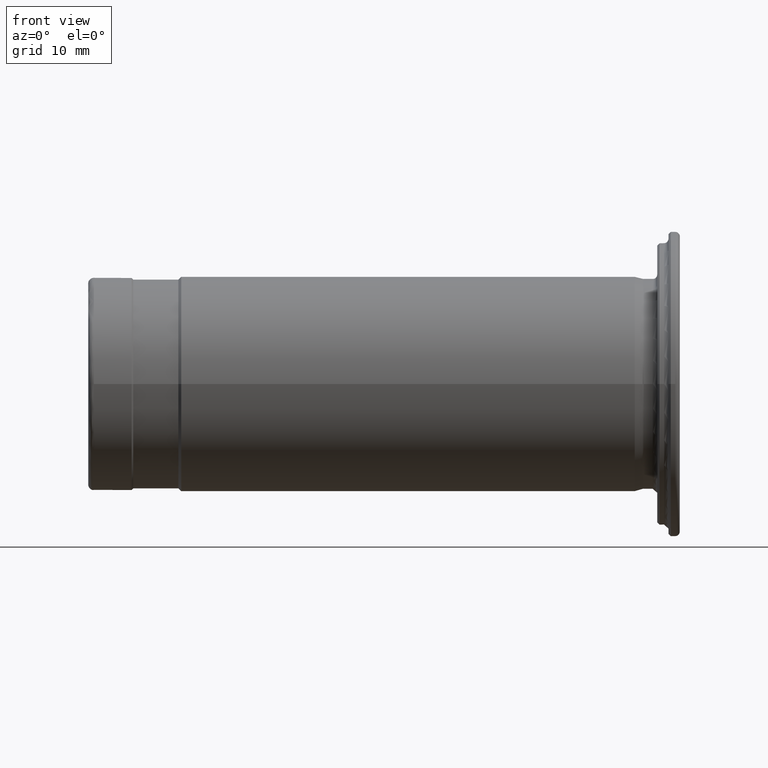
[diagram: clean part render]
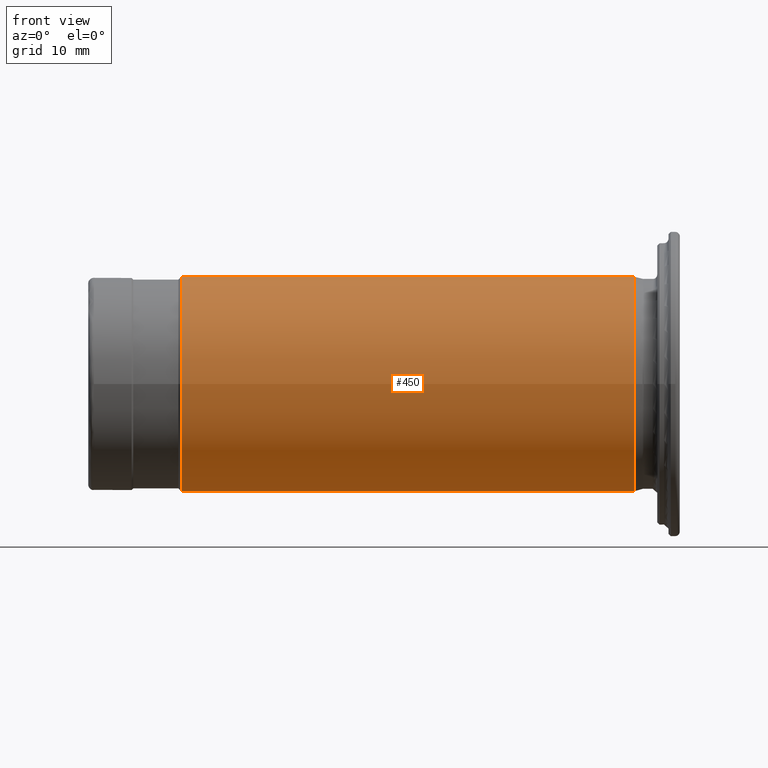
[diagram: same view with one face highlighted and labeled with its STEP entity id]
A machine part, front view. The second image highlights one B-rep face of the part: STEP entity #450.
In plain terms, the highlighted cylindrical surface (bore or boss wall) has radius 9.525 mm, axis along (1, 0, 0).
Its self-contained STEP definition (entity closure, byte-faithful):
#31=CYLINDRICAL_SURFACE('',#549,9.52500000000011);
#68=FACE_OUTER_BOUND('',#101,.T.);
#101=EDGE_LOOP('',(#410,#411,#412,#413));
#118=LINE('',#853,#135);
#135=VECTOR('',#720,9.52500000000011);
#137=CIRCLE('',#476,9.52500000000011);
#182=CIRCLE('',#548,9.52500000000011);
#185=VERTEX_POINT('',#726);
#221=VERTEX_POINT('',#849);
#224=EDGE_CURVE('',#185,#185,#137,.T.);
#283=EDGE_CURVE('',#221,#221,#182,.T.);
#285=EDGE_CURVE('',#185,#221,#118,.T.);
#410=ORIENTED_EDGE('',*,*,#224,.F.);
#411=ORIENTED_EDGE('',*,*,#285,.T.);
#412=ORIENTED_EDGE('',*,*,#283,.T.);
#413=ORIENTED_EDGE('',*,*,#285,.F.);
#450=ADVANCED_FACE('',(#68),#31,.T.);
#476=AXIS2_PLACEMENT_3D('',#728,#557,#558);
#548=AXIS2_PLACEMENT_3D('',#850,#715,#716);
#549=AXIS2_PLACEMENT_3D('',#852,#718,#719);
#557=DIRECTION('center_axis',(1.,0.,0.));
#558=DIRECTION('ref_axis',(0.,0.,-1.));
#715=DIRECTION('center_axis',(1.,0.,0.));
#716=DIRECTION('ref_axis',(0.,0.,-1.));
#718=DIRECTION('center_axis',(1.,0.,0.));
#719=DIRECTION('ref_axis',(0.,1.,0.));
#720=DIRECTION('',(-1.,0.,0.));
#726=CARTESIAN_POINT('',(-5.44510261955045,-9.52500000000011,-1.16647607618787E-15));
#728=CARTESIAN_POINT('Origin',(-5.44510261955045,0.,0.));
#849=CARTESIAN_POINT('',(-45.6951026195506,-9.52500000000011,-1.16647607618787E-15));
#850=CARTESIAN_POINT('Origin',(-45.6951026195506,0.,0.));
#852=CARTESIAN_POINT('Origin',(-25.5701026195505,0.,0.));
#853=CARTESIAN_POINT('',(-25.5701026195505,-9.52500000000011,-1.16647607618787E-15));